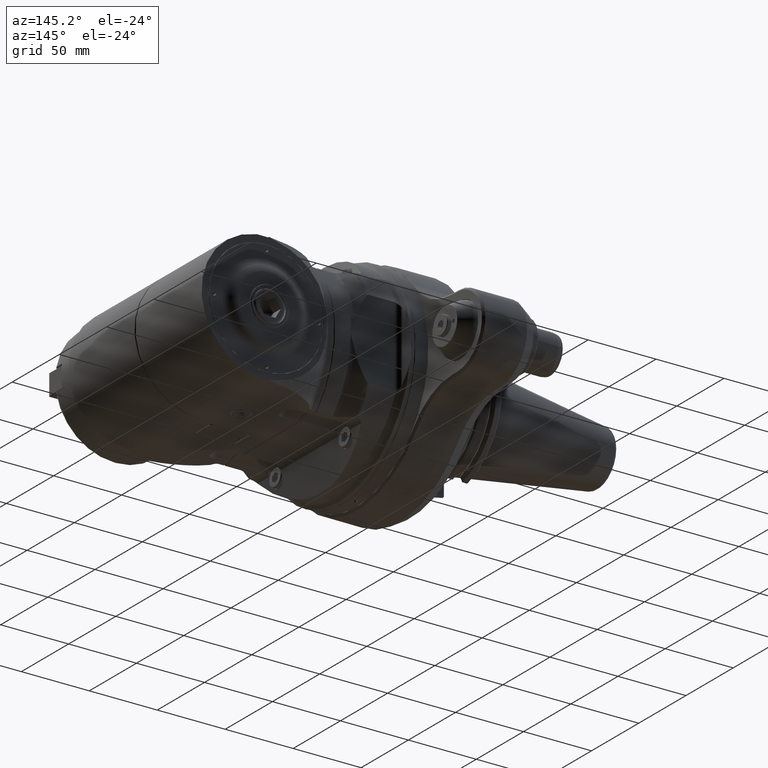
[diagram: clean part render]
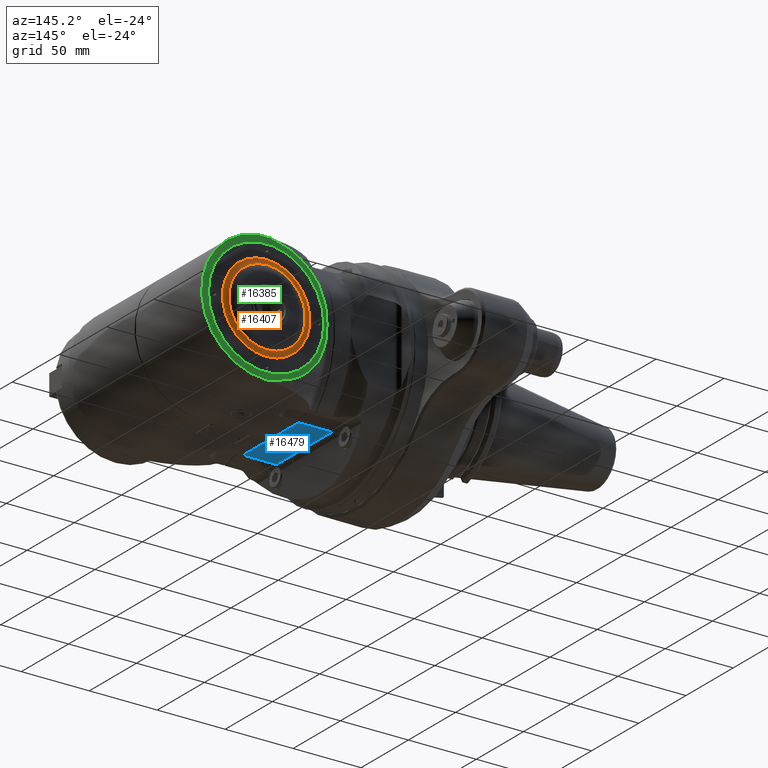
[diagram: same view with three faces highlighted in distinct colors, each labeled with its STEP entity id]
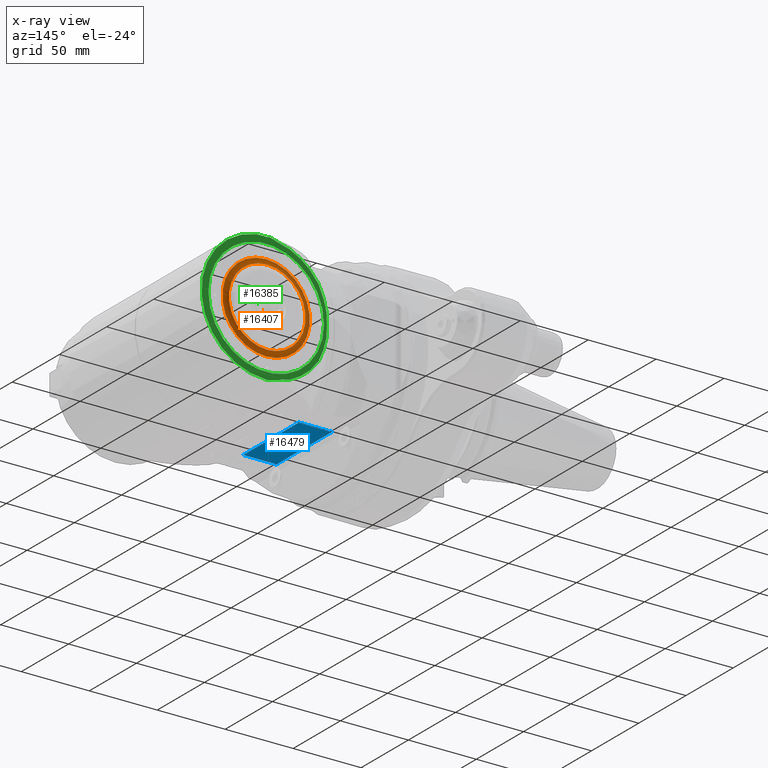
[diagram: x-ray of the same camera — body ghosted, the three highlighted faces saturated]
A machine part, auxiliary view with three faces highlighted in distinct colors.
The next image is the same camera in x-ray (body ghosted, the three faces saturated) — at least one of them is partly hidden behind the body in this view.
Their STEP definitions:

[orange] entity #16407 — the highlighted toroidal blend (fillet) surface has major radius 32.1436 mm and minor (blend) radius 8 mm.
#486=TOROIDAL_SURFACE('',#17940,32.14359353945,8.);
#1637=FACE_OUTER_BOUND('',#2560,.T.);
#2560=EDGE_LOOP('',(#12580,#12581,#12582,#12583));
#5984=CIRCLE('',#17935,32.14359353945);
#5989=CIRCLE('',#17941,8.);
#5990=CIRCLE('',#17942,28.14359353945);
#7058=VERTEX_POINT('',#39568);
#7063=VERTEX_POINT('',#39579);
#9079=EDGE_CURVE('',#7058,#7058,#5984,.T.);
#9084=EDGE_CURVE('',#7058,#7063,#5989,.T.);
#9085=EDGE_CURVE('',#7063,#7063,#5990,.T.);
#12580=ORIENTED_EDGE('',*,*,#9079,.F.);
#12581=ORIENTED_EDGE('',*,*,#9084,.T.);
#12582=ORIENTED_EDGE('',*,*,#9085,.T.);
#12583=ORIENTED_EDGE('',*,*,#9084,.F.);
#16407=ADVANCED_FACE('',(#1637),#486,.F.);
#17935=AXIS2_PLACEMENT_3D('',#39569,#21069,#21070);
#17940=AXIS2_PLACEMENT_3D('',#39578,#21079,#21080);
#17941=AXIS2_PLACEMENT_3D('',#39580,#21081,#21082);
#17942=AXIS2_PLACEMENT_3D('',#39581,#21083,#21084);
#21069=DIRECTION('center_axis',(0.,-1.,-4.66071146748E-9));
#21070=DIRECTION('ref_axis',(0.,-4.66071146748E-9,1.));
#21079=DIRECTION('center_axis',(0.,-1.,-4.66071146748E-9));
#21080=DIRECTION('ref_axis',(0.,4.66071123281933E-9,-1.));
#21081=DIRECTION('center_axis',(1.,0.,0.));
#21082=DIRECTION('ref_axis',(0.,-4.66071145406968E-9,1.));
#21083=DIRECTION('center_axis',(0.,-1.,-4.66071146748E-9));
#21084=DIRECTION('ref_axis',(0.,-4.66071146748E-9,1.));
#39568=CARTESIAN_POINT('',(93.,70.499999850188,32.1435938680302));
#39569=CARTESIAN_POINT('Origin',(93.,70.5,3.285801766207E-7));
#39578=CARTESIAN_POINT('Origin',(93.,78.5,3.658658683606E-7));
#39579=CARTESIAN_POINT('',(93.,71.5717966385508,28.1435938730255));
#39580=CARTESIAN_POINT('Origin',(93.,78.499999850188,32.1435939053159));
#39581=CARTESIAN_POINT('Origin',(93.,71.57179676972,3.335755121162E-7));

[blue] entity #16479 — the highlighted planar face has unit normal (0, 0, 1).
#1017=PLANE('',#18069);
#1709=FACE_OUTER_BOUND('',#2637,.T.);
#2637=EDGE_LOOP('',(#12902,#12903,#12904,#12905,#12906,#12907));
#3677=LINE('',#40199,#4900);
#3679=LINE('',#40206,#4902);
#3680=LINE('',#40210,#4903);
#3681=LINE('',#40211,#4904);
#4900=VECTOR('',#21402,22.5);
#4902=VECTOR('',#21408,59.46724184201);
#4903=VECTOR('',#21411,22.5);
#4904=VECTOR('',#21412,58.6939759534);
#6041=CIRCLE('',#18070,5.361902647382);
#6042=CIRCLE('',#18071,5.361902647382);
#7169=VERTEX_POINT('',#40192);
#7170=VERTEX_POINT('',#40198);
#7172=VERTEX_POINT('',#40204);
#7173=VERTEX_POINT('',#40205);
#7174=VERTEX_POINT('',#40207);
#7175=VERTEX_POINT('',#40209);
#9253=EDGE_CURVE('',#7170,#7169,#3677,.T.);
#9256=EDGE_CURVE('',#7172,#7173,#3679,.T.);
#9257=EDGE_CURVE('',#7174,#7172,#6041,.T.);
#9258=EDGE_CURVE('',#7175,#7174,#3680,.T.);
#9259=EDGE_CURVE('',#7175,#7169,#3681,.T.);
#9260=EDGE_CURVE('',#7170,#7173,#6042,.T.);
#12902=ORIENTED_EDGE('',*,*,#9256,.F.);
#12903=ORIENTED_EDGE('',*,*,#9257,.F.);
#12904=ORIENTED_EDGE('',*,*,#9258,.F.);
#12905=ORIENTED_EDGE('',*,*,#9259,.T.);
#12906=ORIENTED_EDGE('',*,*,#9253,.F.);
#12907=ORIENTED_EDGE('',*,*,#9260,.T.);
#16479=ADVANCED_FACE('',(#1709),#1017,.F.);
#18069=AXIS2_PLACEMENT_3D('',#40203,#21406,#21407);
#18070=AXIS2_PLACEMENT_3D('',#40208,#21409,#21410);
#18071=AXIS2_PLACEMENT_3D('',#40212,#21413,#21414);
#21402=DIRECTION('',(0.999999999999998,5.78819700712699E-8,-2.38164713235E-8));
#21406=DIRECTION('center_axis',(0.,0.,1.));
#21407=DIRECTION('ref_axis',(-1.,0.,0.));
#21408=DIRECTION('',(0.,-1.,0.));
#21409=DIRECTION('center_axis',(0.,0.,-1.));
#21410=DIRECTION('ref_axis',(0.,-1.,0.));
#21411=DIRECTION('',(-0.999999999999998,5.78843137570099E-8,2.381743513524E-8));
#21412=DIRECTION('',(0.,-1.,3.698348974468E-13));
#21413=DIRECTION('center_axis',(0.,0.,1.));
#21414=DIRECTION('ref_axis',(1.457685938624E-13,1.,0.));
#40192=CARTESIAN_POINT('',(40.4999999726847,-29.346988710895,-47.5000004198599));
#40198=CARTESIAN_POINT('',(18.,-29.34698927909,-47.5));
#40199=CARTESIAN_POINT('',(18.,-29.34698927909,-47.5));
#40203=CARTESIAN_POINT('Origin',(39.5,-92.4000024,-47.5));
#40204=CARTESIAN_POINT('',(16.00083056686,29.73362092099,-47.5));
#40205=CARTESIAN_POINT('',(16.00083056686,-29.73362092102,-47.5));
#40206=CARTESIAN_POINT('',(16.00083056686,29.73362092099,-47.5));
#40207=CARTESIAN_POINT('',(18.,29.34698927905,-47.5));
#40208=CARTESIAN_POINT('Origin',(18.,34.70889192643,-47.5));
#40209=CARTESIAN_POINT('',(40.4999999726819,29.3469887108875,-47.5000004198505));
#40210=CARTESIAN_POINT('',(40.5,29.34698797665,-47.50000053589));
#40211=CARTESIAN_POINT('',(40.5,29.34698797665,-47.50000053589));
#40212=CARTESIAN_POINT('Origin',(18.,-34.70889192647,-47.5));

[green] entity #16385 — the highlighted planar face has unit normal (0, -1, -0).
#177=(
BOUNDED_CURVE()
B_SPLINE_CURVE(2,(#39412,#39413,#39414),.UNSPECIFIED.,.F.,.F.)
B_SPLINE_CURVE_WITH_KNOTS((3,3),(-25.9431526168475,-22.0397383309983),
 .UNSPECIFIED.)
CURVE()
GEOMETRIC_REPRESENTATION_ITEM()
RATIONAL_B_SPLINE_CURVE((2.13794239568008,2.15310480635773,2.13794345529168))
REPRESENTATION_ITEM('')
);
#178=(
BOUNDED_CURVE()
B_SPLINE_CURVE(2,(#39419,#39420,#39421),.UNSPECIFIED.,.F.,.F.)
B_SPLINE_CURVE_WITH_KNOTS((3,3),(16.300218581805,19.381885288112),
 .UNSPECIFIED.)
CURVE()
GEOMETRIC_REPRESENTATION_ITEM()
RATIONAL_B_SPLINE_CURVE((1.44314622882667,1.43312361571669,1.40347217915798))
REPRESENTATION_ITEM('')
);
#179=(
BOUNDED_CURVE()
B_SPLINE_CURVE(2,(#39425,#39426,#39427),.UNSPECIFIED.,.F.,.F.)
B_SPLINE_CURVE_WITH_KNOTS((3,3),(2.39513776430518,3.80736004634394),
 .UNSPECIFIED.)
CURVE()
GEOMETRIC_REPRESENTATION_ITEM()
RATIONAL_B_SPLINE_CURVE((1.03198908647794,1.03916487885148,1.04368157965269))
REPRESENTATION_ITEM('')
);
#180=(
BOUNDED_CURVE()
B_SPLINE_CURVE(2,(#39431,#39432,#39433),.UNSPECIFIED.,.F.,.F.)
B_SPLINE_CURVE_WITH_KNOTS((3,3),(2.99183257733319,4.09630716408517),
 .UNSPECIFIED.)
CURVE()
GEOMETRIC_REPRESENTATION_ITEM()
RATIONAL_B_SPLINE_CURVE((1.02510202597109,1.02807421227655,1.02981990082699))
REPRESENTATION_ITEM('')
);
#181=(
BOUNDED_CURVE()
B_SPLINE_CURVE(2,(#39437,#39438,#39439),.UNSPECIFIED.,.F.,.F.)
B_SPLINE_CURVE_WITH_KNOTS((3,3),(3.35458571455237,4.32211017460038),
 .UNSPECIFIED.)
CURVE()
GEOMETRIC_REPRESENTATION_ITEM()
RATIONAL_B_SPLINE_CURVE((1.01557676443753,1.01676815669801,1.01735103158158))
REPRESENTATION_ITEM('')
);
#182=(
BOUNDED_CURVE()
B_SPLINE_CURVE(2,(#39442,#39443,#39444),.UNSPECIFIED.,.F.,.F.)
B_SPLINE_CURVE_WITH_KNOTS((3,3),(4.96723855944183,5.26380613583951),
 .UNSPECIFIED.)
CURVE()
GEOMETRIC_REPRESENTATION_ITEM()
RATIONAL_B_SPLINE_CURVE((1.00640145941134,1.00639659544382,1.0063683316891))
REPRESENTATION_ITEM('')
);
#183=(
BOUNDED_CURVE()
B_SPLINE_CURVE(2,(#39445,#39446,#39447),.UNSPECIFIED.,.F.,.F.)
B_SPLINE_CURVE_WITH_KNOTS((3,3),(3.56298292017186,4.96723855944183),
 .UNSPECIFIED.)
CURVE()
GEOMETRIC_REPRESENTATION_ITEM()
RATIONAL_B_SPLINE_CURVE((1.00592288685661,1.00642449043146,1.00640145941134))
REPRESENTATION_ITEM('')
);
#184=(
BOUNDED_CURVE()
B_SPLINE_CURVE(2,(#39451,#39452,#39453),.UNSPECIFIED.,.F.,.F.)
B_SPLINE_CURVE_WITH_KNOTS((3,3),(3.35458545806309,4.32211005930293),
 .UNSPECIFIED.)
CURVE()
GEOMETRIC_REPRESENTATION_ITEM()
RATIONAL_B_SPLINE_CURVE((1.01557676380585,1.01676815640151,1.01735103144266))
REPRESENTATION_ITEM('')
);
#185=(
BOUNDED_CURVE()
B_SPLINE_CURVE(2,(#39455,#39456,#39457),.UNSPECIFIED.,.F.,.F.)
B_SPLINE_CURVE_WITH_KNOTS((3,3),(2.99183257733321,4.09630689821853),
 .UNSPECIFIED.)
CURVE()
GEOMETRIC_REPRESENTATION_ITEM()
RATIONAL_B_SPLINE_CURVE((1.0251020259711,1.0280742115611,1.02981989998656))
REPRESENTATION_ITEM('')
);
#186=(
BOUNDED_CURVE()
B_SPLINE_CURVE(2,(#39459,#39460,#39461),.UNSPECIFIED.,.F.,.F.)
B_SPLINE_CURVE_WITH_KNOTS((3,3),(2.39513776430522,3.80736004634397),
 .UNSPECIFIED.)
CURVE()
GEOMETRIC_REPRESENTATION_ITEM()
RATIONAL_B_SPLINE_CURVE((1.03198908647794,1.03916487885148,1.04368157965268))
REPRESENTATION_ITEM('')
);
#187=(
BOUNDED_CURVE()
B_SPLINE_CURVE(2,(#39462,#39463,#39464),.UNSPECIFIED.,.F.,.F.)
B_SPLINE_CURVE_WITH_KNOTS((3,3),(16.3002069690073,19.381885288112),
 .UNSPECIFIED.)
CURVE()
GEOMETRIC_REPRESENTATION_ITEM()
RATIONAL_B_SPLINE_CURVE((1.44314630436381,1.43312372745367,1.40347217915798))
REPRESENTATION_ITEM('')
);
#188=(
BOUNDED_CURVE()
B_SPLINE_CURVE(2,(#39470,#39471,#39472),.UNSPECIFIED.,.F.,.F.)
B_SPLINE_CURVE_WITH_KNOTS((3,3),(3.56298281035981,5.27106462335903),
 .UNSPECIFIED.)
CURVE()
GEOMETRIC_REPRESENTATION_ITEM()
RATIONAL_B_SPLINE_CURVE((1.00592288677818,1.00653301786091,1.00636693416202))
REPRESENTATION_ITEM('')
);
#556=FACE_BOUND('',#2533,.T.);
#988=PLANE('',#17890);
#1615=FACE_OUTER_BOUND('',#2532,.T.);
#2532=EDGE_LOOP('',(#12468,#12469,#12470,#12471,#12472,#12473,#12474,#12475,
#12476,#12477,#12478,#12479,#12480,#12481,#12482,#12483));
#2533=EDGE_LOOP('',(#12484));
#3579=LINE('',#39243,#4802);
#3599=LINE('',#39466,#4822);
#3600=LINE('',#39468,#4823);
#4802=VECTOR('',#20808,10.);
#4822=VECTOR('',#20970,10.);
#4823=VECTOR('',#20971,8.383865044575);
#5961=CIRCLE('',#17891,47.5);
#5962=CIRCLE('',#17892,42.5);
#6921=VERTEX_POINT('',#38992);
#6994=VERTEX_POINT('',#39238);
#6995=VERTEX_POINT('',#39242);
#7029=VERTEX_POINT('',#39409);
#7030=VERTEX_POINT('',#39411);
#7031=VERTEX_POINT('',#39417);
#7032=VERTEX_POINT('',#39423);
#7033=VERTEX_POINT('',#39429);
#7034=VERTEX_POINT('',#39435);
#7035=VERTEX_POINT('',#39441);
#7036=VERTEX_POINT('',#39449);
#7037=VERTEX_POINT('',#39450);
#7038=VERTEX_POINT('',#39454);
#7039=VERTEX_POINT('',#39458);
#7040=VERTEX_POINT('',#39465);
#7041=VERTEX_POINT('',#39467);
#7042=VERTEX_POINT('',#39473);
#8959=EDGE_CURVE('',#6995,#6994,#3579,.T.);
#9025=EDGE_CURVE('',#7030,#7029,#177,.F.);
#9028=EDGE_CURVE('',#7029,#7031,#178,.T.);
#9030=EDGE_CURVE('',#7031,#7032,#179,.T.);
#9032=EDGE_CURVE('',#7032,#7033,#180,.T.);
#9034=EDGE_CURVE('',#7033,#7034,#181,.T.);
#9035=EDGE_CURVE('',#7035,#6921,#182,.T.);
#9036=EDGE_CURVE('',#7034,#7035,#183,.T.);
#9037=EDGE_CURVE('',#7036,#7037,#184,.T.);
#9038=EDGE_CURVE('',#7038,#7036,#185,.T.);
#9039=EDGE_CURVE('',#7039,#7038,#186,.T.);
#9040=EDGE_CURVE('',#7030,#7039,#187,.T.);
#9041=EDGE_CURVE('',#6921,#7040,#3599,.T.);
#9042=EDGE_CURVE('',#7040,#7041,#3600,.T.);
#9043=EDGE_CURVE('',#7041,#6995,#5961,.T.);
#9044=EDGE_CURVE('',#7037,#6994,#188,.T.);
#9045=EDGE_CURVE('',#7042,#7042,#5962,.T.);
#12468=ORIENTED_EDGE('',*,*,#9037,.F.);
#12469=ORIENTED_EDGE('',*,*,#9038,.F.);
#12470=ORIENTED_EDGE('',*,*,#9039,.F.);
#12471=ORIENTED_EDGE('',*,*,#9040,.F.);
#12472=ORIENTED_EDGE('',*,*,#9025,.T.);
#12473=ORIENTED_EDGE('',*,*,#9028,.T.);
#12474=ORIENTED_EDGE('',*,*,#9030,.T.);
#12475=ORIENTED_EDGE('',*,*,#9032,.T.);
#12476=ORIENTED_EDGE('',*,*,#9034,.T.);
#12477=ORIENTED_EDGE('',*,*,#9036,.T.);
#12478=ORIENTED_EDGE('',*,*,#9035,.T.);
#12479=ORIENTED_EDGE('',*,*,#9041,.T.);
#12480=ORIENTED_EDGE('',*,*,#9042,.T.);
#12481=ORIENTED_EDGE('',*,*,#9043,.T.);
#12482=ORIENTED_EDGE('',*,*,#8959,.T.);
#12483=ORIENTED_EDGE('',*,*,#9044,.F.);
#12484=ORIENTED_EDGE('',*,*,#9045,.T.);
#16385=ADVANCED_FACE('',(#1615,#556),#988,.F.);
#17890=AXIS2_PLACEMENT_3D('',#39448,#20968,#20969);
#17891=AXIS2_PLACEMENT_3D('',#39469,#20972,#20973);
#17892=AXIS2_PLACEMENT_3D('',#39474,#20974,#20975);
#20808=DIRECTION('',(-1.,0.,0.));
#20968=DIRECTION('center_axis',(0.,-1.,-4.660711712401E-9));
#20969=DIRECTION('ref_axis',(-1.,0.,0.));
#20970=DIRECTION('',(0.707106781186498,3.29562085699455E-9,-0.707106781186597));
#20971=DIRECTION('',(1.,4.46503292834E-11,6.493942229854E-9));
#20972=DIRECTION('center_axis',(0.,1.,4.660711712401E-9));
#20973=DIRECTION('ref_axis',(0.144712963981007,-4.61165155687221E-9,0.98947367729305));
#20974=DIRECTION('center_axis',(0.,-1.,-4.660711712401E-9));
#20975=DIRECTION('ref_axis',(1.,0.,0.));
#38992=CARTESIAN_POINT('',(90.9984438682935,70.4945322808976,47.4907804458082));
#39238=CARTESIAN_POINT('',(91.072554384394,70.5000187213901,-47.5000267047351));
#39242=CARTESIAN_POINT('',(92.99999861249,70.5000002213848,-47.4999998359352));
#39243=CARTESIAN_POINT('',(90.38237025729,70.5000002213855,-47.5));
#39409=CARTESIAN_POINT('',(48.5357197200059,70.4999982493199,8.41136578667774));
#39411=CARTESIAN_POINT('',(48.535696822037,70.5000000392042,-8.41103739514002));
#39412=CARTESIAN_POINT('Ctrl Pts',(48.5357192418883,70.4999999607987,8.41136584479089));
#39413=CARTESIAN_POINT('Ctrl Pts',(47.9604132190659,70.5000000000003,0.0002921692311455));
#39414=CARTESIAN_POINT('Ctrl Pts',(48.5356787520239,70.5000000392019,-8.41077319826156));
#39417=CARTESIAN_POINT('',(54.4659587661,70.49999988074,25.58808349243));
#39419=CARTESIAN_POINT('Ctrl Pts',(48.5357258724781,70.4999999607987,8.41136476647507));
#39420=CARTESIAN_POINT('Ctrl Pts',(50.0028482402923,70.4999999218675,16.7644270602586));
#39421=CARTESIAN_POINT('Ctrl Pts',(54.4659587660953,70.499999880743,25.5880834924033));
#39423=CARTESIAN_POINT('',(60.89947952763,70.49999984446,33.37289352051));
#39425=CARTESIAN_POINT('Ctrl Pts',(54.4659587662002,70.499999880743,25.5880834925527));
#39426=CARTESIAN_POINT('Ctrl Pts',(57.2579997813798,70.4999998629574,29.40416683959));
#39427=CARTESIAN_POINT('Ctrl Pts',(60.8994795276338,70.4999998444602,33.3728935205065));
#39429=CARTESIAN_POINT('',(67.7681770540139,70.4999994068277,38.8587208299002));
#39431=CARTESIAN_POINT('Ctrl Pts',(60.8994795276319,70.4999998444603,33.3728935205064));
#39432=CARTESIAN_POINT('Ctrl Pts',(64.0729974243329,70.499999831878,36.0725433687037));
#39433=CARTESIAN_POINT('Ctrl Pts',(67.7681773161993,70.4999998188924,38.8587204840276));
#39435=CARTESIAN_POINT('',(75.2322776646116,70.4999996464446,42.8485715565458));
#39437=CARTESIAN_POINT('Ctrl Pts',(67.768177453733,70.4999998188924,38.8587201118823));
#39438=CARTESIAN_POINT('Ctrl Pts',(71.3179877312132,70.4999998097087,40.8291681659098));
#39439=CARTESIAN_POINT('Ctrl Pts',(75.2322777274261,70.4999998002969,42.8485714419052));
#39441=CARTESIAN_POINT('',(88.1354634612846,70.4999997825216,46.6624169555139));
#39442=CARTESIAN_POINT('Ctrl Pts',(88.1354634612846,70.4999997825216,46.6624169555139));
#39443=CARTESIAN_POINT('Ctrl Pts',(89.5560815977047,70.4999997806216,47.0700822193265));
#39444=CARTESIAN_POINT('Ctrl Pts',(91.001588778484,70.4999997787114,47.479936405369));
#39445=CARTESIAN_POINT('Ctrl Pts',(75.232277765976,70.4999998002969,42.8485712320007));
#39446=CARTESIAN_POINT('Ctrl Pts',(81.4089839156869,70.499999791518,44.7321642097643));
#39447=CARTESIAN_POINT('Ctrl Pts',(88.1354634612846,70.4999997825216,46.6624169555139));
#39448=CARTESIAN_POINT('Origin',(153.464458,70.50000048658,-104.4000020714));
#39449=CARTESIAN_POINT('',(67.7681754846782,70.500000093579,-38.8587185613716));
#39450=CARTESIAN_POINT('',(75.2322767882312,70.5000001823019,-42.8485703168639));
#39451=CARTESIAN_POINT('Ctrl Pts',(67.7681755694262,70.500000181111,-38.8587184087707));
#39452=CARTESIAN_POINT('Ctrl Pts',(71.3179862704196,70.5000001902947,-40.8291667385636));
#39453=CARTESIAN_POINT('Ctrl Pts',(75.2322767950485,70.5000001997065,-42.8485703037262));
#39454=CARTESIAN_POINT('',(60.89947952763,70.50000015554,-33.37289286335));
#39455=CARTESIAN_POINT('Ctrl Pts',(60.8994795276321,70.5000001555431,-33.3728928633462));
#39456=CARTESIAN_POINT('Ctrl Pts',(64.0729966626194,70.5000001681254,-36.0725420635685));
#39457=CARTESIAN_POINT('Ctrl Pts',(67.7681755402241,70.500000181111,-38.8587184877764));
#39458=CARTESIAN_POINT('',(54.4659587661,70.50000011926,-25.58808283527));
#39459=CARTESIAN_POINT('Ctrl Pts',(54.4659587662003,70.5000001192604,-25.5880828353925));
#39460=CARTESIAN_POINT('Ctrl Pts',(57.25799978138,70.500000137046,-29.4041661824299));
#39461=CARTESIAN_POINT('Ctrl Pts',(60.899479527634,70.5000001555431,-33.3728928633463));
#39462=CARTESIAN_POINT('Ctrl Pts',(48.5357148920514,70.5000000392043,-8.41130159201823));
#39463=CARTESIAN_POINT('Ctrl Pts',(50.0028317697099,70.5000000781357,-16.7643938404361));
#39464=CARTESIAN_POINT('Ctrl Pts',(54.4659587660954,70.5000001192604,-25.5880828352432));
#39465=CARTESIAN_POINT('',(91.49,70.49999978057,47.));
#39466=CARTESIAN_POINT('',(144.711114935703,70.5000000289965,-6.22111493571031));
#39467=CARTESIAN_POINT('',(99.8738650491939,70.4999997809459,47.000000072127));
#39468=CARTESIAN_POINT('',(91.49,70.49999978057,47.));
#39469=CARTESIAN_POINT('Origin',(93.,70.5,3.285801757243E-7));
#39470=CARTESIAN_POINT('Ctrl Pts',(75.2322767994632,70.5000001997065,-42.8485702800999));
#39471=CARTESIAN_POINT('Ctrl Pts',(82.7445712162983,70.5000002103837,-45.1394523033904));
#39472=CARTESIAN_POINT('Ctrl Pts',(91.072363303621,70.5000002213855,-47.5));
#39473=CARTESIAN_POINT('',(50.5,70.5,3.28580180928999E-7));
#39474=CARTESIAN_POINT('Origin',(93.,70.5,3.285801757243E-7));